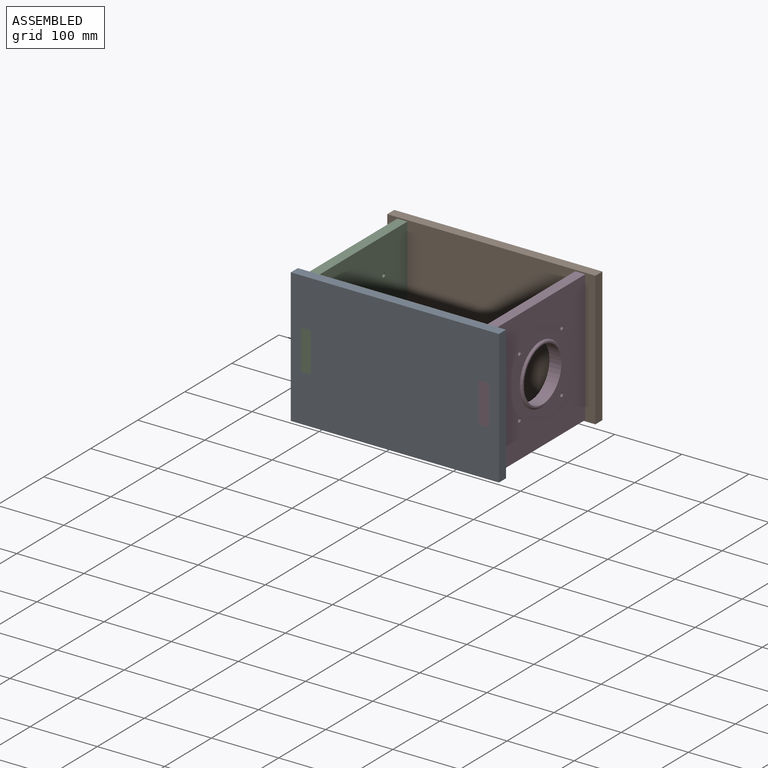
[diagram: assembled view]
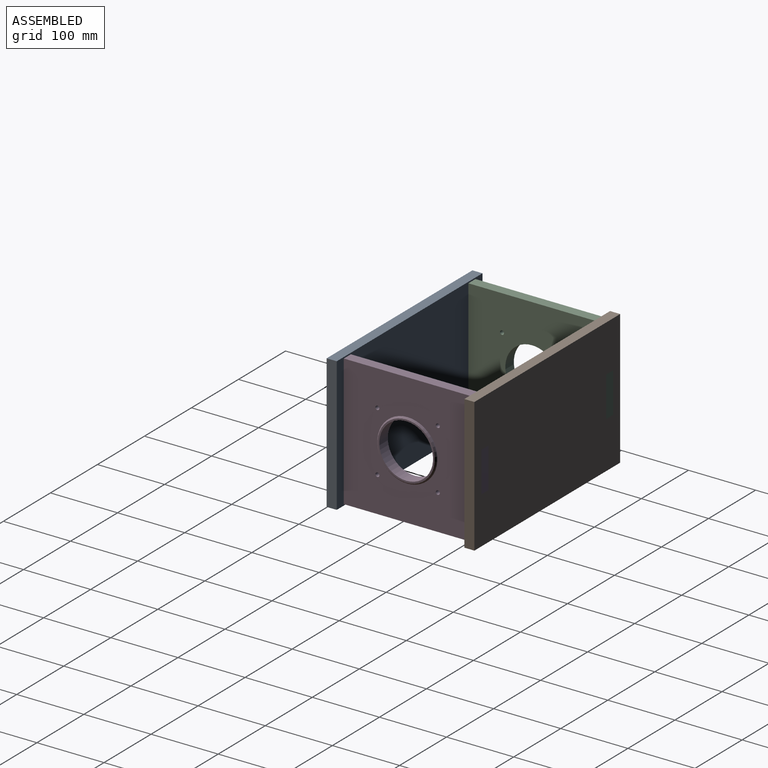
[diagram: assembled view, second angle]
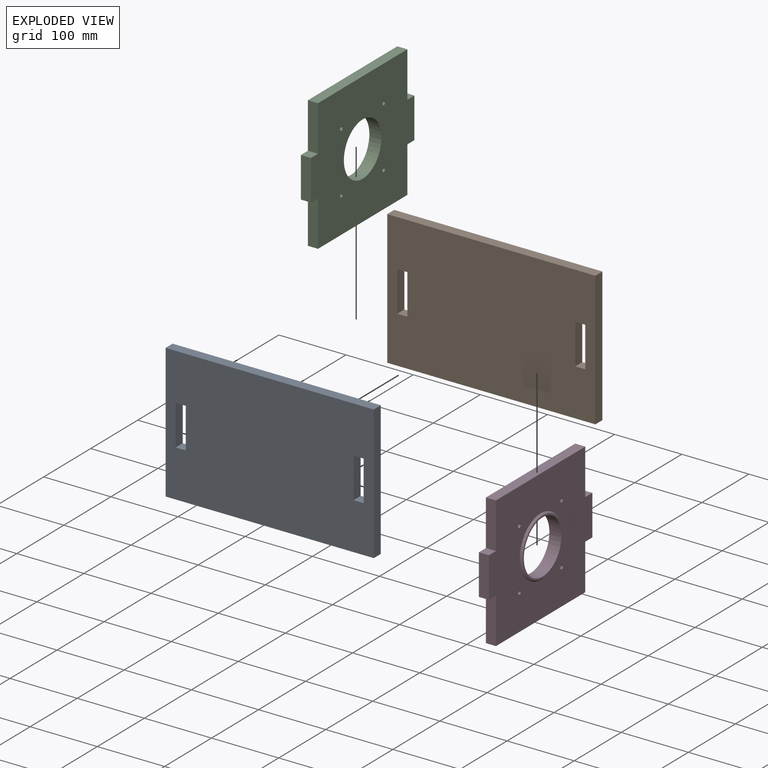
[diagram: exploded view]
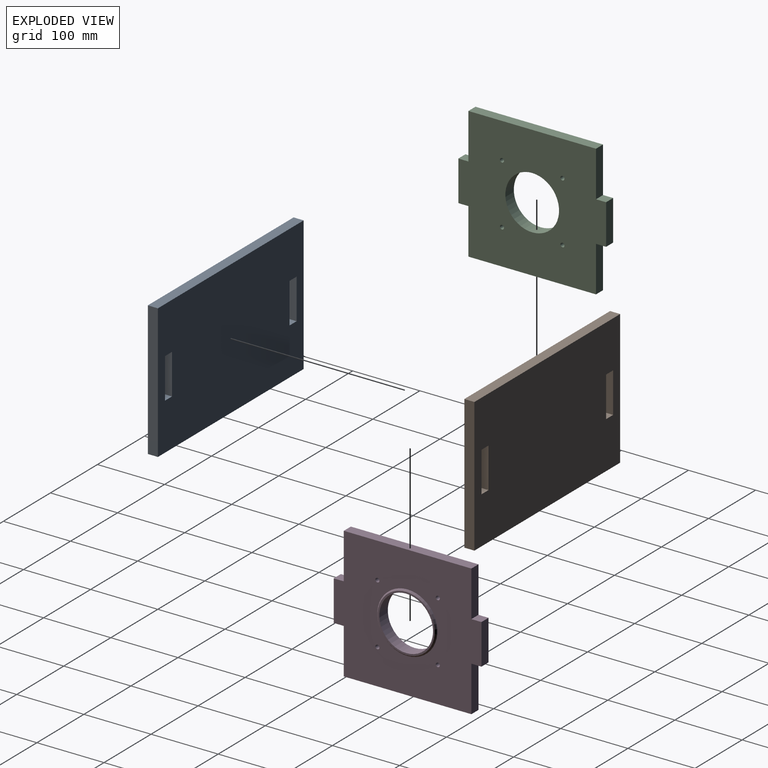
[diagram: exploded view, second angle]
ASSEMBLY  parts=4 mates=3
PART A: 14 faces, bbox 310x15x200 mm
  f0: plane 310x15mm, normal (0,0,1), area 4650mm2, adj f1,f11,f12,f13
  f1: plane 200x15mm, normal (-1,0,0), area 3000mm2, adj f0,f2,f12,f13
  f2: plane 310x15mm, normal (0,0,-1), area 4650mm2, adj f1,f11,f12,f13
  f3: plane 60x15mm, normal (1,0,0), area 900mm2, adj f4,f9,f12,f13
  f4: plane 15x15mm, normal (0,0,-1), area 225mm2, adj f3,f5,f12,f13
  f5: plane 60x15mm, normal (-1,0,0), area 900mm2, adj f4,f9,f12,f13
  f6: plane 60x15mm, normal (1,0,0), area 900mm2, adj f7,f10,f12,f13
  f7: plane 15x15mm, normal (0,0,-1), area 225mm2, adj f6,f8,f12,f13
  f8: plane 60x15mm, normal (-1,0,0), area 900mm2, adj f7,f10,f12,f13
  f9: plane 15x15mm, normal (0,0,1), area 225mm2, adj f3,f5,f12,f13
  f10: plane 15x15mm, normal (0,0,1), area 225mm2, adj f6,f8,f12,f13
  f11: plane 200x15mm, normal (1,0,0), area 3000mm2, adj f0,f2,f12,f13
  f12: plane 310x200mm, normal (0,1,0), area 60200mm2, adj f0,f1,f2,f3,f4,f5,f6,f7
  f13: plane 310x200mm, normal (0,-1,0), area 60200mm2, adj f0,f1,f2,f3,f4,f5,f6,f7
PART B: same geometry as A
PART C: 22 faces, bbox 18x220x196 mm
  f0: plane 220x196mm, normal (-1,0,0), area 33900.4mm2, adj f1,f2,f3,f4,f5,f6,f7,f8
  f1: plane 15x15mm, normal (0,0,-1), area 225mm2, adj f0,f2,f10,f17
  f2: plane 60x15mm, normal (0,-1,0), area 900mm2, adj f0,f1,f3,f10
  f3: plane 15x15mm, normal (0,0,1), area 225mm2, adj f0,f2,f4,f10
  f4: plane 68x15mm, normal (0,-1,0), area 1020mm2, adj f0,f3,f5,f10
  f5: plane 190x15mm, normal (0,0,1), area 2850mm2, adj f0,f4,f6,f10
  f6: plane 68x15mm, normal (0,1,0), area 1020mm2, adj f0,f5,f7,f10
  f7: plane 15x15mm, normal (0,0,1), area 225mm2, adj f0,f6,f8,f10
  f8: plane 60x15mm, normal (0,1,0), area 900mm2, adj f0,f7,f9,f10
  f9: plane 15x15mm, normal (0,0,-1), area 225mm2, adj f0,f8,f10,f16
  f10: plane 220x196mm, normal (1,0,0), area 32705.8mm2, adj f1,f2,f3,f4,f5,f6,f7,f8
  f11: cylinder r=40mm len=80mm, axis (1,0,0), area 4523.9mm2, adj f0,f20
  f12: cylinder r=3mm len=15mm, axis (1,0,0), area 282.7mm2, adj f0,f10
  f13: cylinder r=3mm len=15mm, axis (1,0,0), area 282.7mm2, adj f0,f10
  f14: cylinder r=3mm len=15mm, axis (1,0,0), area 282.7mm2, adj f0,f10
  f15: cylinder r=3mm len=15mm, axis (1,0,0), area 282.7mm2, adj f0,f10
  f16: plane 68x15mm, normal (0,1,0), area 1020mm2, adj f0,f9,f10,f18
  f17: plane 68x15mm, normal (0,-1,0), area 1020mm2, adj f0,f1,f10,f18
  f18: plane 190x15mm, normal (0,0,-1), area 2850mm2, adj f0,f10,f16,f17
  f19: cylinder r=44.5mm len=89mm, axis (-1,0,0), area 279.6mm2, adj f10,f21
  f20: plane 85x85mm, normal (1,0,0), area 648mm2, adj f11,f21
  f21: cone r=44.5mm half-angle=45deg, axis (-1,0,0), area 773.1mm2, adj f19,f20
PART D: same geometry as C
PLACE A at identity
PLACE B t=(0,205,0)mm
PLACE C rot(axis=(0,0,1),180deg) t=(0,0,0)mm
PLACE D at identity
MATE fastened C.f17 <-> B.f13  axis (0,1,0) through (-125,95,-30)mm
MATE fastened B.f13 <-> D.f16  axis (0,-1,0) through (125,95,-30)mm
MATE fastened D.f17 <-> A.f12  axis (0,-1,0) through (125,-95,-30)mm
